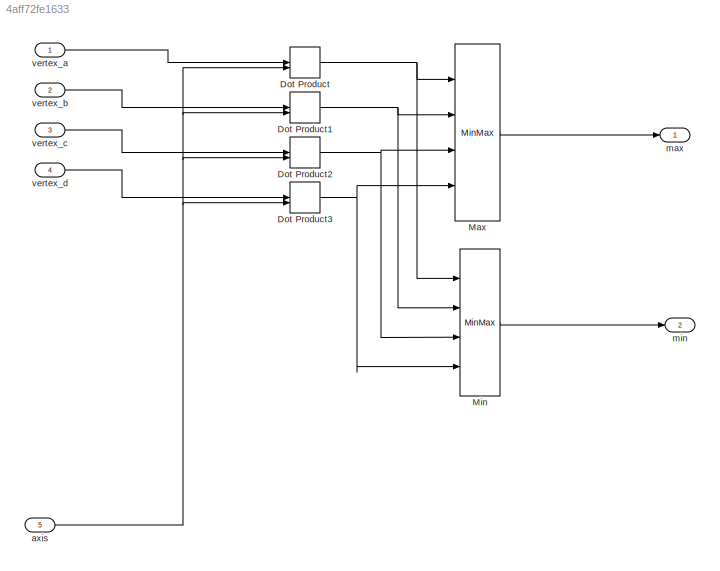
MODEL slx_4aff72fe1633
KIND model
CONFIG AbsTol = auto
CONFIG EnableMultiTasking = off
CONFIG FixedStep = auto
CONFIG MaxStep = auto
CONFIG MinStep = auto
CONFIG RelTol = 1e-3
CONFIG SampleTimeConstraint = Unconstrained
CONFIG Solver = VariableStepAuto
CONFIG SolverName = VariableStepAuto
CONFIG StartTime = 0.0
CONFIG StopTime = 10.0
BLOCK [DotProduct] Dot Product
  OutDataTypeStr = Inherit: Inherit via internal rule
BLOCK [DotProduct] Dot Product1
  OutDataTypeStr = Inherit: Inherit via internal rule
BLOCK [DotProduct] Dot Product2
  OutDataTypeStr = Inherit: Inherit via internal rule
BLOCK [DotProduct] Dot Product3
  OutDataTypeStr = Inherit: Inherit via internal rule
BLOCK [MinMax] Max
  Function = max
  InputSameDT = off
  Inputs = 4
  Ports = [4, 1]
  SaturateOnIntegerOverflow = off
BLOCK [MinMax] Min
  InputSameDT = off
  Inputs = 4
  Ports = [4, 1]
  SaturateOnIntegerOverflow = off
BLOCK [Inport] axis 
  IconDisplay = Port number
  OutDataTypeStr = double
  Port = 5
  PortDimensions = 2
  SampleTime = 0
  SamplingMode = Sample based
  SignalType = real
BLOCK [Outport] max
  IconDisplay = Port number
  OutDataTypeStr = double
  PortDimensions = 1
  SampleTime = 0
  SamplingMode = Sample based
  SignalType = real
BLOCK [Outport] min
  IconDisplay = Port number
  OutDataTypeStr = double
  Port = 2
  PortDimensions = 1
  SampleTime = 0
  SamplingMode = Sample based
  SignalType = real
BLOCK [Inport] vertex_a
  IconDisplay = Port number
  OutDataTypeStr = double
  PortDimensions = 2
  SampleTime = 0
  SamplingMode = Sample based
  SignalType = real
BLOCK [Inport] vertex_b
  IconDisplay = Port number
  OutDataTypeStr = double
  Port = 2
  PortDimensions = 2
  SampleTime = 0
  SamplingMode = Sample based
  SignalType = real
BLOCK [Inport] vertex_c
  IconDisplay = Port number
  OutDataTypeStr = double
  Port = 3
  PortDimensions = 2
  SampleTime = 0
  SamplingMode = Sample based
  SignalType = real
BLOCK [Inport] vertex_d
  IconDisplay = Port number
  OutDataTypeStr = double
  Port = 4
  PortDimensions = 2
  SampleTime = 0
  SamplingMode = Sample based
  SignalType = real
NET Dot Product1:1 -> Max:2, Min:2
NET Dot Product2:1 -> Max:3, Min:3
NET Dot Product3:1 -> Max:4, Min:4
NET Dot Product:1 -> Max:1, Min:1
LINE Max:1 -> max:1
LINE Min:1 -> min:1
NET axis :1 -> Dot Product1:2, Dot Product2:2, Dot Product3:2, Dot Product:2
LINE vertex_a:1 -> Dot Product:1
LINE vertex_b:1 -> Dot Product1:1
LINE vertex_c:1 -> Dot Product2:1
LINE vertex_d:1 -> Dot Product3:1
note: NET lines group one-source signal fan-out (src -> all destinations, sorted); 1:1 wires keep LINE
